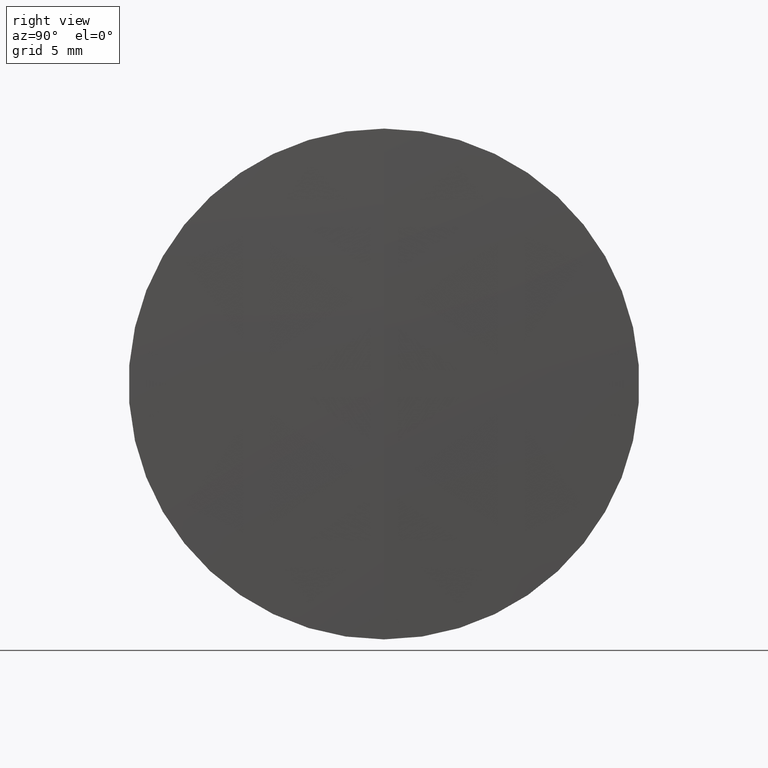
[diagram: clean part render]
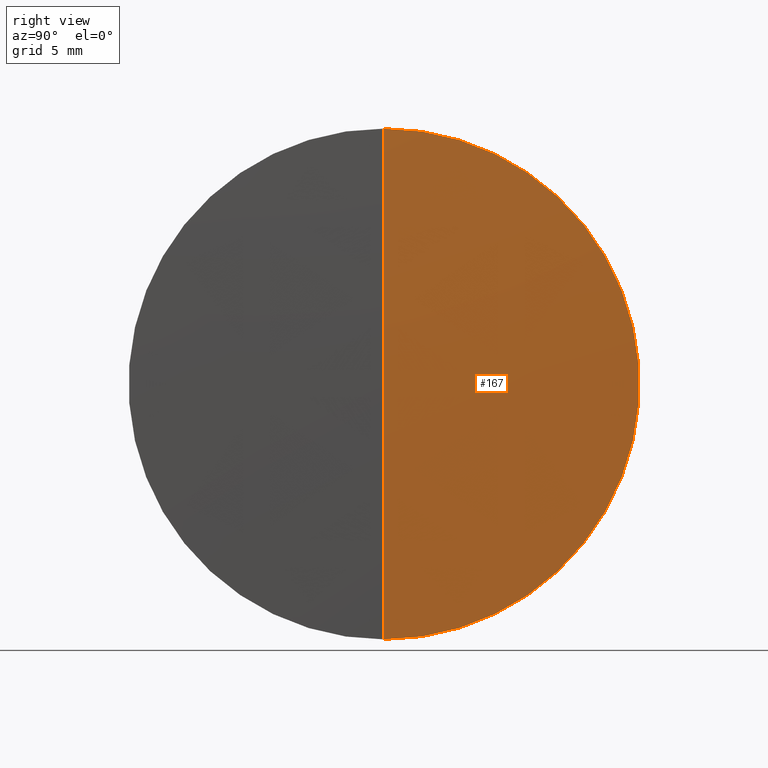
[diagram: same view with one face highlighted and labeled with its STEP entity id]
A machine part, right view. The second image highlights one B-rep face of the part: STEP entity #167.
In plain terms, the highlighted spherical surface has radius 459.2 mm.
Its self-contained STEP definition (entity closure, byte-faithful):
#16 = AXIS2_PLACEMENT_3D ( 'NONE', #291, #114, #89 ) ;
#28 = CARTESIAN_POINT ( 'NONE',  ( -164.8005524568976600, 0.0000000000000000000, 0.0000000000000000000 ) ) ;
#30 = AXIS2_PLACEMENT_3D ( 'NONE', #61, #312, #310 ) ;
#61 = CARTESIAN_POINT ( 'NONE',  ( -164.8005524568976600, 0.0000000000000000000, 0.0000000000000000000 ) ) ;
#66 = EDGE_CURVE ( 'NONE', #255, #158, #345, .T. ) ;
#85 = ORIENTED_EDGE ( 'NONE', *, *, #122, .F. ) ;
#86 = DIRECTION ( 'NONE',  ( 0.0000000000000000000, 1.000000000000000000, 0.0000000000000000000 ) ) ;
#89 = DIRECTION ( 'NONE',  ( 0.0000000000000000000, 0.0000000000000000000, -1.000000000000000000 ) ) ;
#92 = VERTEX_POINT ( 'NONE', #108 ) ;
#108 = CARTESIAN_POINT ( 'NONE',  ( 294.2237933026709700, 0.0000000000000000000, 12.69999999999995500 ) ) ;
#109 = ORIENTED_EDGE ( 'NONE', *, *, #66, .T. ) ;
#114 = DIRECTION ( 'NONE',  ( 0.0000000000000000000, -1.000000000000000000, 0.0000000000000000000 ) ) ;
#122 = EDGE_CURVE ( 'NONE', #255, #92, #325, .T. ) ;
#140 = CARTESIAN_POINT ( 'NONE',  ( 294.3994475431023300, 0.0000000000000000000, 2.811789050842323200E-014 ) ) ;
#155 = FACE_OUTER_BOUND ( 'NONE', #215, .T. ) ;
#158 = VERTEX_POINT ( 'NONE', #196 ) ;
#167 = ADVANCED_FACE ( 'NONE', ( #155 ), #295, .T. ) ;
#184 = DIRECTION ( 'NONE',  ( 0.0000000000000000000, 0.0000000000000000000, 1.000000000000000000 ) ) ;
#196 = CARTESIAN_POINT ( 'NONE',  ( 294.2237933026709700, 1.555301434917134100E-015, -12.69999999999995500 ) ) ;
#210 = CARTESIAN_POINT ( 'NONE',  ( 294.2237933026709700, 0.0000000000000000000, 0.0000000000000000000 ) ) ;
#213 = AXIS2_PLACEMENT_3D ( 'NONE', #28, #86, #184 ) ;
#215 = EDGE_LOOP ( 'NONE', ( #85, #109, #321 ) ) ;
#227 = DIRECTION ( 'NONE',  ( -1.000000000000000000, -0.0000000000000000000, -0.0000000000000000000 ) ) ;
#249 = EDGE_CURVE ( 'NONE', #92, #158, #333, .T. ) ;
#255 = VERTEX_POINT ( 'NONE', #140 ) ;
#279 = DIRECTION ( 'NONE',  ( 0.0000000000000000000, 0.0000000000000000000, 1.000000000000000000 ) ) ;
#291 = CARTESIAN_POINT ( 'NONE',  ( -164.8005524568976600, 0.0000000000000000000, 0.0000000000000000000 ) ) ;
#295 = SPHERICAL_SURFACE ( 'NONE', #213, 459.1999999999999900 ) ;
#304 = AXIS2_PLACEMENT_3D ( 'NONE', #210, #227, #279 ) ;
#310 = DIRECTION ( 'NONE',  ( 0.0000000000000000000, -1.224646799147353200E-016, 1.000000000000000000 ) ) ;
#312 = DIRECTION ( 'NONE',  ( -0.0000000000000000000, 1.000000000000000000, 1.224646799147353200E-016 ) ) ;
#321 = ORIENTED_EDGE ( 'NONE', *, *, #249, .F. ) ;
#325 = CIRCLE ( 'NONE', #16, 459.1999999999999900 ) ;
#333 = CIRCLE ( 'NONE', #304, 12.69999999999995500 ) ;
#345 = CIRCLE ( 'NONE', #30, 459.1999999999999900 ) ;